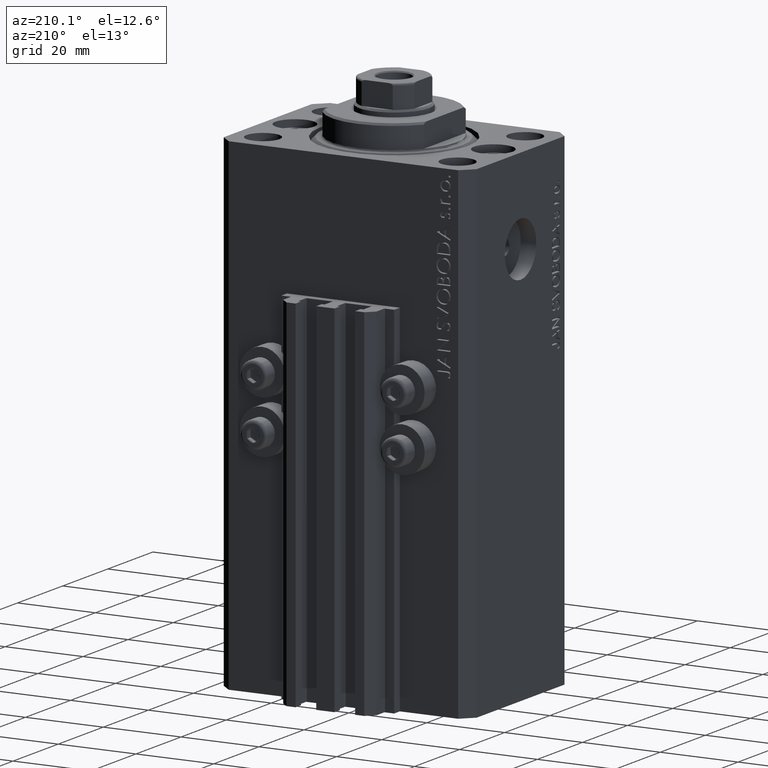
[diagram: clean part render]
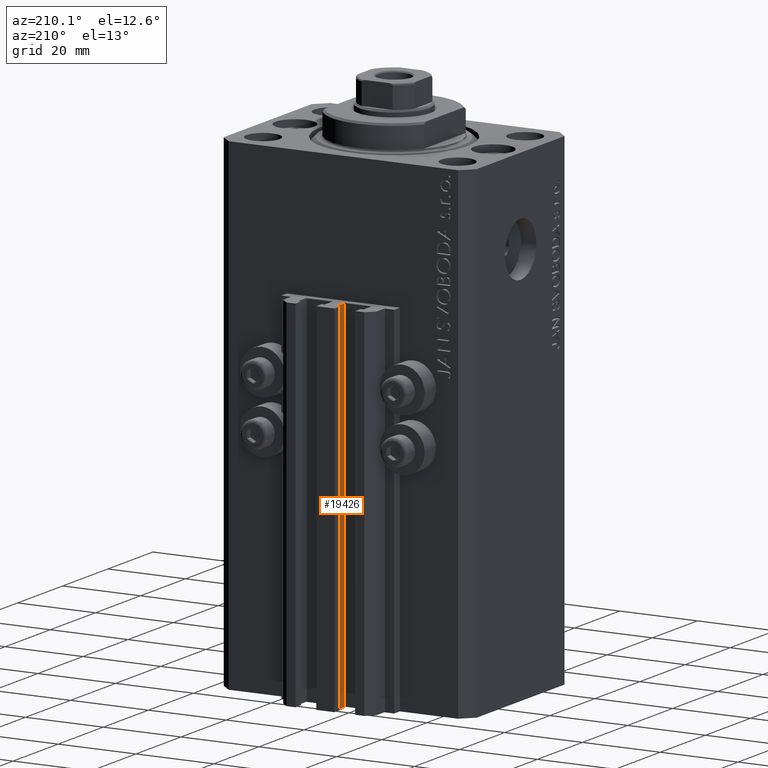
[diagram: same view with one face highlighted and labeled with its STEP entity id]
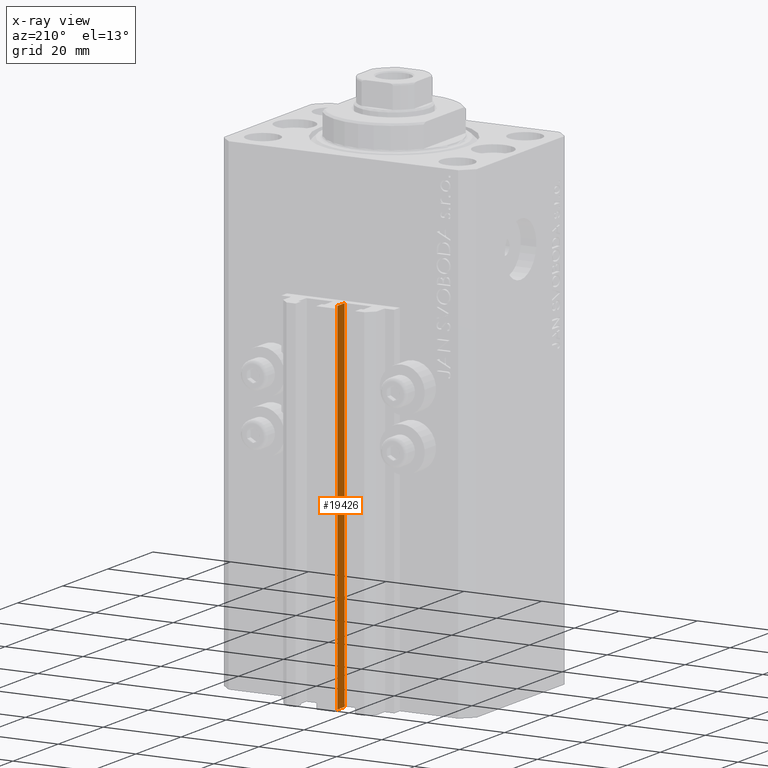
[diagram: x-ray of the same camera — body ghosted, the highlighted face saturated]
A machine part, auxiliary view. The second image highlights one B-rep face of the part: STEP entity #19426.
The next image is the same camera in x-ray: the body ghosted, the highlighted face saturated — about 0% of this face is hidden behind the body in this view.
In plain terms, the highlighted planar face has unit normal (-1, 0, 0).
Its self-contained STEP definition (entity closure, byte-faithful):
#867 = EDGE_CURVE ( 'NONE', #40915, #4108, #24460, .T. ) ;
#1514 = VECTOR ( 'NONE', #30401, 1000.000000000000000 ) ;
#1932 = DIRECTION ( 'NONE',  ( -6.776263578034385456E-17, -1.000000000000000000, 0.000000000000000000 ) ) ;
#4061 = ORIENTED_EDGE ( 'NONE', *, *, #8844, .T. ) ;
#4108 = VERTEX_POINT ( 'NONE', #11947 ) ;
#5633 = CARTESIAN_POINT ( 'NONE',  ( -1.600000000000003197, 27.89999999999950120, -33.00000000000000000 ) ) ;
#6600 = EDGE_CURVE ( 'NONE', #10978, #4108, #41556, .T. ) ;
#6762 = VECTOR ( 'NONE', #1932, 1000.000000000000000 ) ;
#8844 = EDGE_CURVE ( 'NONE', #44030, #40915, #29940, .T. ) ;
#8944 = CARTESIAN_POINT ( 'NONE',  ( -1.600000000000000755, 24.69999999999949480, -125.0000000000000000 ) ) ;
#10978 = VERTEX_POINT ( 'NONE', #5633 ) ;
#11097 = FACE_OUTER_BOUND ( 'NONE', #44598, .T. ) ;
#11947 = CARTESIAN_POINT ( 'NONE',  ( -1.600000000000000755, 24.69999999999949480, -33.00000000000000000 ) ) ;
#12208 = CARTESIAN_POINT ( 'NONE',  ( -1.600000000000000533, 27.89999999999950120, -125.0000000000000000 ) ) ;
#12687 = EDGE_CURVE ( 'NONE', #44030, #10978, #17158, .T. ) ;
#13101 = CARTESIAN_POINT ( 'NONE',  ( -1.600000000000003197, 27.89999999999950120, -125.0000000000000000 ) ) ;
#17158 = LINE ( 'NONE', #13101, #43566 ) ;
#17532 = CARTESIAN_POINT ( 'NONE',  ( -1.600000000000000755, 24.69999999999949480, -125.0000000000000000 ) ) ;
#19426 = ADVANCED_FACE ( 'NONE', ( #11097 ), #44660, .T. ) ;
#21129 = CARTESIAN_POINT ( 'NONE',  ( -1.600000000000003197, 27.89999999999950120, -125.0000000000000000 ) ) ;
#23284 = VECTOR ( 'NONE', #39467, 1000.000000000000000 ) ;
#23422 = CARTESIAN_POINT ( 'NONE',  ( -1.600000000000000533, 27.89999999999950120, -33.00000000000000000 ) ) ;
#24460 = LINE ( 'NONE', #17532, #23284 ) ;
#25791 = ORIENTED_EDGE ( 'NONE', *, *, #6600, .F. ) ;
#25875 = CARTESIAN_POINT ( 'NONE',  ( -1.600000000000000533, 27.89999999999950120, -125.0000000000000000 ) ) ;
#26533 = DIRECTION ( 'NONE',  ( -1.000000000000000000, 6.776263578034385456E-17, 0.000000000000000000 ) ) ;
#29940 = LINE ( 'NONE', #25875, #1514 ) ;
#30401 = DIRECTION ( 'NONE',  ( -6.776263578034385456E-17, -1.000000000000000000, 0.000000000000000000 ) ) ;
#37927 = DIRECTION ( 'NONE',  ( 0.000000000000000000, 0.000000000000000000, 1.000000000000000000 ) ) ;
#39116 = AXIS2_PLACEMENT_3D ( 'NONE', #12208, #26533, #41085 ) ;
#39467 = DIRECTION ( 'NONE',  ( 0.000000000000000000, 0.000000000000000000, 1.000000000000000000 ) ) ;
#40801 = ORIENTED_EDGE ( 'NONE', *, *, #12687, .F. ) ;
#40915 = VERTEX_POINT ( 'NONE', #8944 ) ;
#41085 = DIRECTION ( 'NONE',  ( -6.776263578034385456E-17, -1.000000000000000000, 0.000000000000000000 ) ) ;
#41556 = LINE ( 'NONE', #23422, #6762 ) ;
#43566 = VECTOR ( 'NONE', #37927, 1000.000000000000000 ) ;
#44030 = VERTEX_POINT ( 'NONE', #21129 ) ;
#44598 = EDGE_LOOP ( 'NONE', ( #25791, #40801, #4061, #46350 ) ) ;
#44660 = PLANE ( 'NONE',  #39116 ) ;
#46350 = ORIENTED_EDGE ( 'NONE', *, *, #867, .T. ) ;